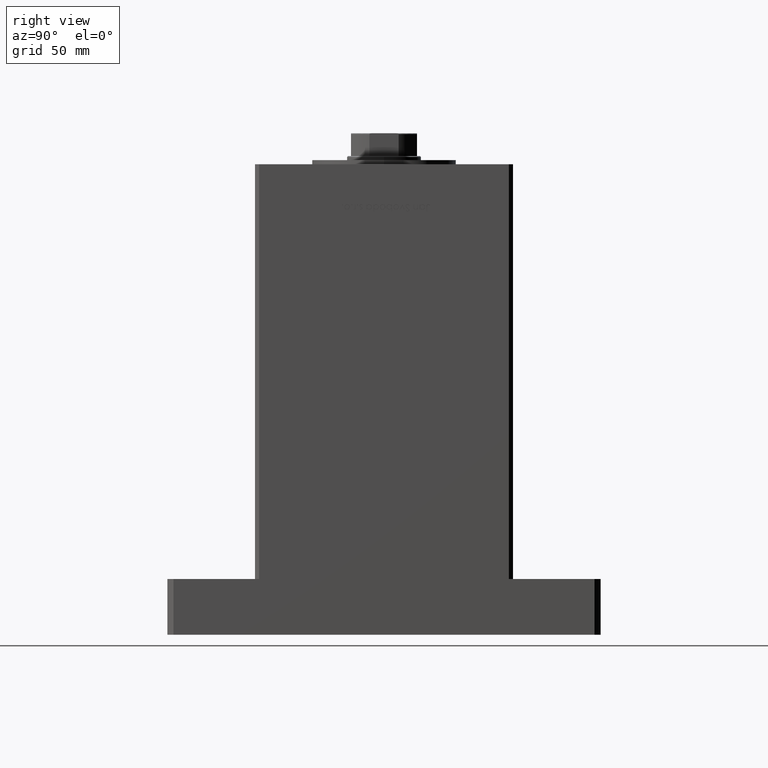
[diagram: clean part render]
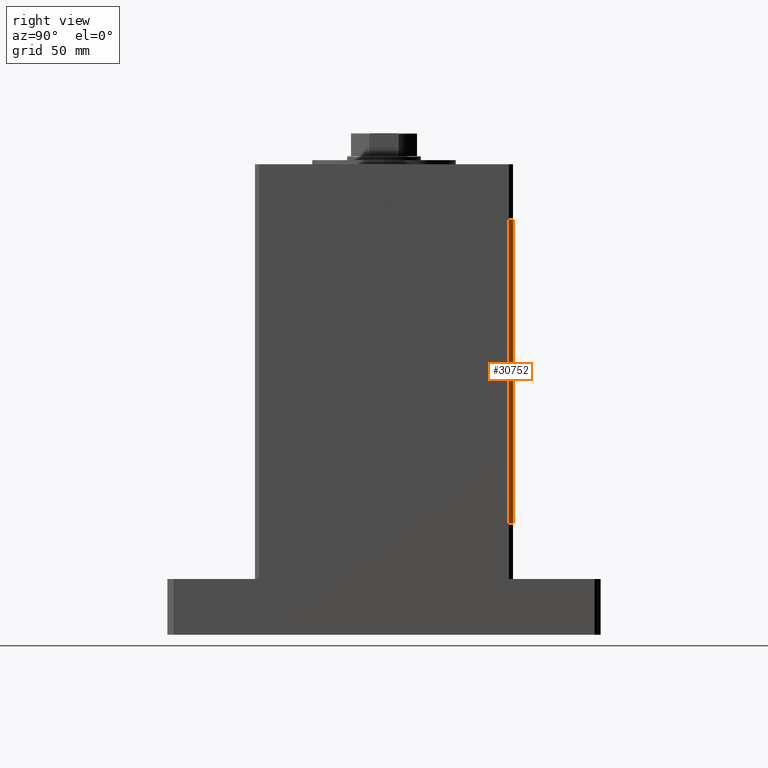
[diagram: same view with one face highlighted and labeled with its STEP entity id]
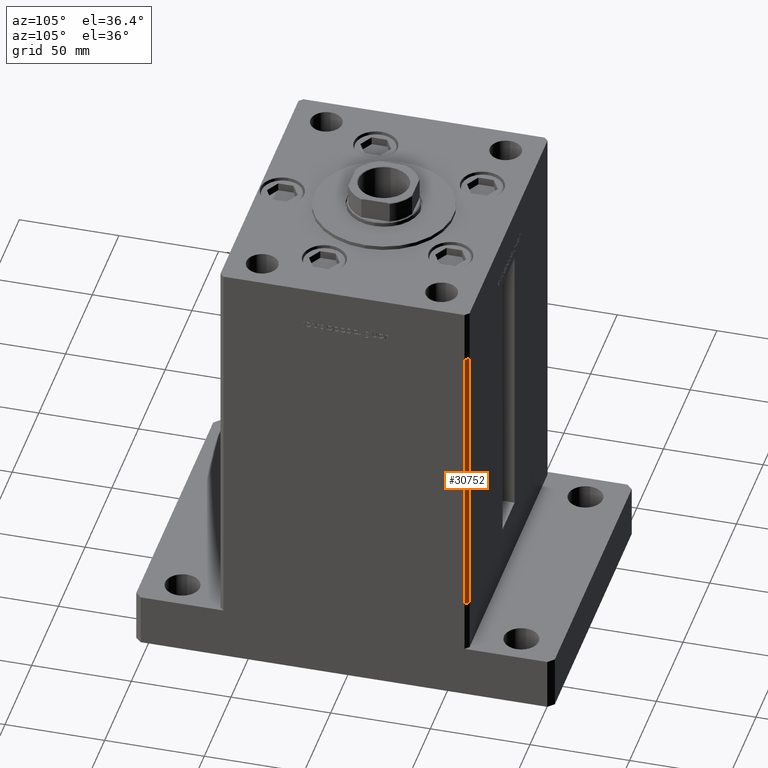
[diagram: same view with one face highlighted and labeled with its STEP entity id]
A machine part, right view. The second image highlights one B-rep face of the part: STEP entity #30752.
A second angle (auxiliary view) of the same face is appended — the face is thin or edge-on in the first view.
In plain terms, the highlighted planar face has unit normal (0.7071, 0.7071, 0).
Its self-contained STEP definition (entity closure, byte-faithful):
#2238 = DIRECTION ( 'NONE',  ( 0.7071067811865474617, -0.7071067811865474617, 0.000000000000000000 ) ) ;
#3611 = PLANE ( 'NONE',  #43985 ) ;
#4403 = LINE ( 'NONE', #5471, #26438 ) ;
#5471 = CARTESIAN_POINT ( 'NONE',  ( 73.00000000000001421, 62.50000000000000000, 0.000000000000000000 ) ) ;
#8671 = LINE ( 'NONE', #41753, #11651 ) ;
#9149 = VECTOR ( 'NONE', #9198, 1000.000000000000000 ) ;
#9198 = DIRECTION ( 'NONE',  ( -0.000000000000000000, -0.000000000000000000, -1.000000000000000000 ) ) ;
#10610 = VERTEX_POINT ( 'NONE', #12562 ) ;
#11328 = CARTESIAN_POINT ( 'NONE',  ( 73.00000000000001421, 62.50000000000000000, 0.000000000000000000 ) ) ;
#11651 = VECTOR ( 'NONE', #21154, 1000.000000000000000 ) ;
#12562 = CARTESIAN_POINT ( 'NONE',  ( 75.00000000000001421, 60.50000000000000000, 0.000000000000000000 ) ) ;
#12677 = VERTEX_POINT ( 'NONE', #11328 ) ;
#13559 = CARTESIAN_POINT ( 'NONE',  ( 75.00000000000001421, 60.50000000000000000, 147.0000000000000000 ) ) ;
#18819 = EDGE_CURVE ( 'NONE', #42607, #10610, #8671, .T. ) ;
#20669 = EDGE_CURVE ( 'NONE', #12677, #10610, #4403, .T. ) ;
#21154 = DIRECTION ( 'NONE',  ( -0.000000000000000000, -0.000000000000000000, -1.000000000000000000 ) ) ;
#26438 = VECTOR ( 'NONE', #33957, 1000.000000000000114 ) ;
#26482 = DIRECTION ( 'NONE',  ( -0.7071067811865474617, 0.7071067811865474617, 0.000000000000000000 ) ) ;
#26749 = FACE_OUTER_BOUND ( 'NONE', #27193, .T. ) ;
#27193 = EDGE_LOOP ( 'NONE', ( #40308, #53574, #50032, #36690 ) ) ;
#30752 = ADVANCED_FACE ( 'NONE', ( #26749 ), #3611, .T. ) ;
#31358 = DIRECTION ( 'NONE',  ( 0.7071067811865475727, 0.7071067811865475727, -0.000000000000000000 ) ) ;
#32571 = VERTEX_POINT ( 'NONE', #49778 ) ;
#33957 = DIRECTION ( 'NONE',  ( 0.7071067811865474617, -0.7071067811865474617, 0.000000000000000000 ) ) ;
#35168 = CARTESIAN_POINT ( 'NONE',  ( 73.00000000000001421, 62.50000000000000000, 147.0000000000000000 ) ) ;
#36690 = ORIENTED_EDGE ( 'NONE', *, *, #18819, .T. ) ;
#37736 = VECTOR ( 'NONE', #2238, 1000.000000000000114 ) ;
#40308 = ORIENTED_EDGE ( 'NONE', *, *, #20669, .F. ) ;
#41753 = CARTESIAN_POINT ( 'NONE',  ( 75.00000000000001421, 60.50000000000000000, 147.0000000000000000 ) ) ;
#42286 = LINE ( 'NONE', #46360, #9149 ) ;
#42607 = VERTEX_POINT ( 'NONE', #13559 ) ;
#43985 = AXIS2_PLACEMENT_3D ( 'NONE', #35168, #31358, #26482 ) ;
#44660 = EDGE_CURVE ( 'NONE', #32571, #42607, #47257, .T. ) ;
#46006 = EDGE_CURVE ( 'NONE', #32571, #12677, #42286, .T. ) ;
#46360 = CARTESIAN_POINT ( 'NONE',  ( 73.00000000000001421, 62.50000000000000000, 147.0000000000000000 ) ) ;
#47257 = LINE ( 'NONE', #51862, #37736 ) ;
#49778 = CARTESIAN_POINT ( 'NONE',  ( 73.00000000000001421, 62.50000000000000000, 147.0000000000000000 ) ) ;
#50032 = ORIENTED_EDGE ( 'NONE', *, *, #44660, .T. ) ;
#51862 = CARTESIAN_POINT ( 'NONE',  ( 73.00000000000001421, 62.50000000000000000, 147.0000000000000000 ) ) ;
#53574 = ORIENTED_EDGE ( 'NONE', *, *, #46006, .F. ) ;